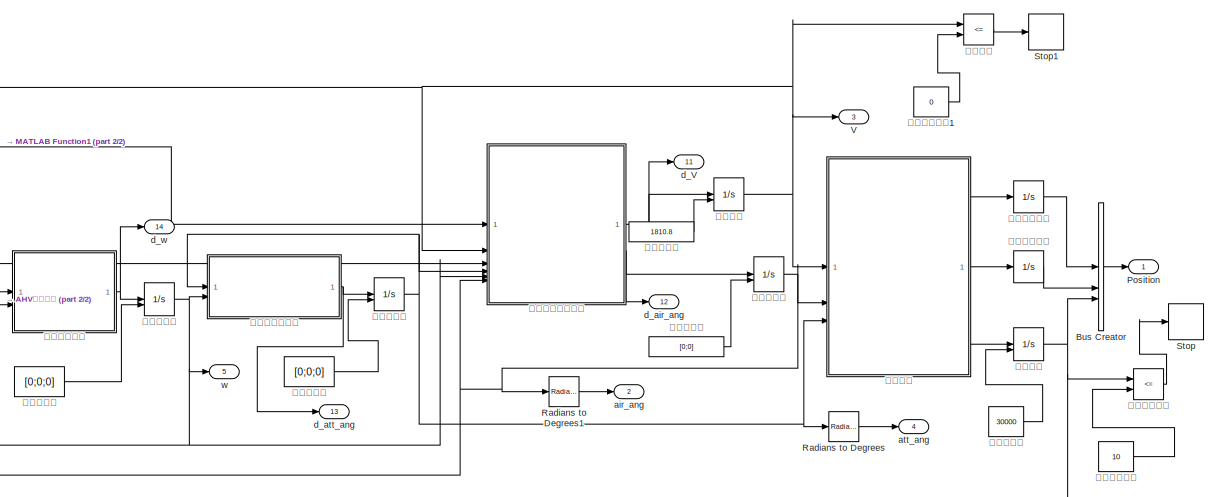
[diagram: root canvas - part 1/2, center side, full height]
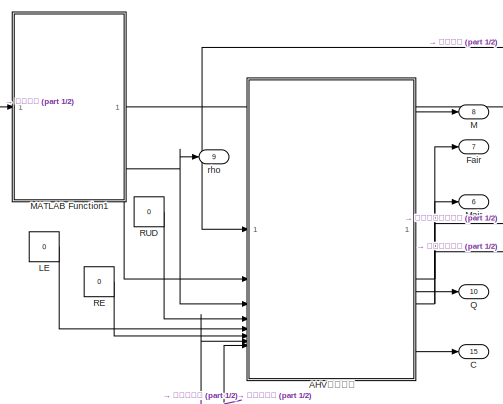
[diagram: root canvas - part 2/2, middle left region]
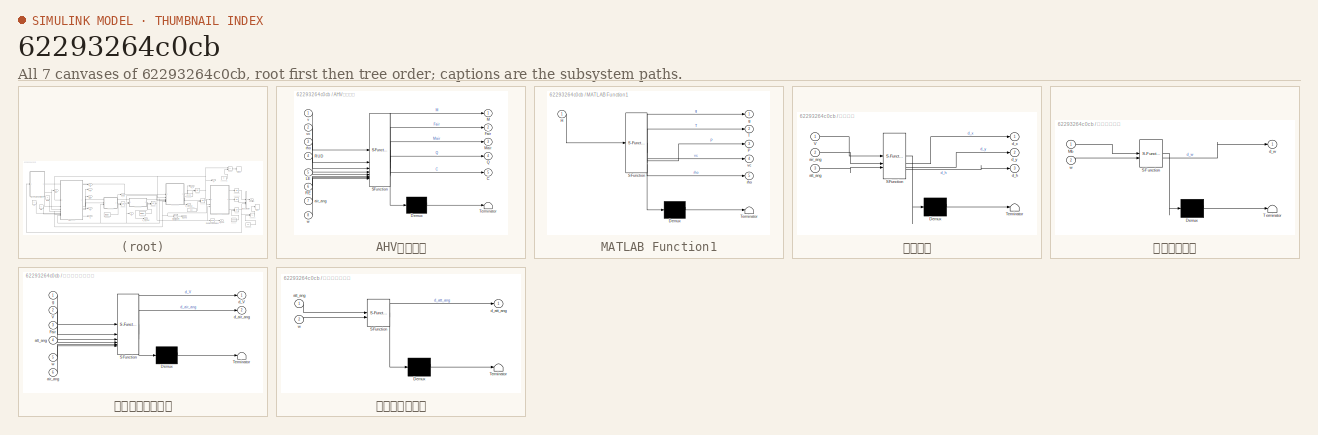
[diagram: thumbnail index - all 7 canvases of the model, root first then tree order]
MODEL slx_62293264c0cb
KIND model
CONFIG AbsTol = auto
CONFIG EnableMultiTasking = off
CONFIG FixedStep = 0.0000001
CONFIG MaxStep = 0.1
CONFIG MinStep = auto
CONFIG RelTol = 1e-3
CONFIG SampleTimeConstraint = Unconstrained
CONFIG SolverName = VariableStepAuto
CONFIG StartTime = 0.0
CONFIG StopTime = 10
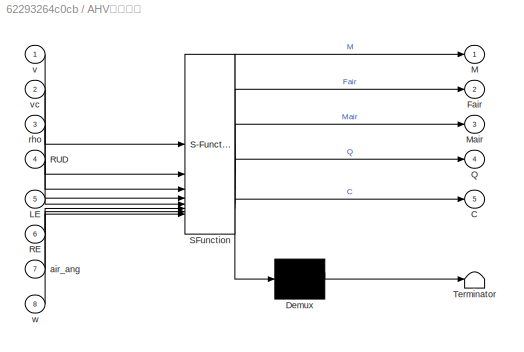
BLOCK [SubSystem] AHV气动参数
  ErrorFcn = Stateflow.Translate.translate
  PermitHierarchicalResolution = ExplicitOnly
  SFBlockType = MATLAB Function
  TreatAsAtomicUnit = on
BLOCK [Demux] AHV气动参数/ Demux 
  Outputs = 1
BLOCK [S-Function] AHV气动参数/ SFunction 
  EnableBusSupport = on
  FunctionName = sf_sfun
  PortCounts = [8 6]
  SFcnIsStateOwnerBlock = off
  SFunctionDeploymentMode = off
  Tag = Stateflow S-Function 4
BLOCK [Terminator] AHV气动参数/ Terminator 
BLOCK [Outport] AHV气动参数/C
  Port = 5
BLOCK [Outport] AHV气动参数/Fair
  Port = 2
BLOCK [Inport] AHV气动参数/LE
  Port = 5
BLOCK [Outport] AHV气动参数/M
BLOCK [Outport] AHV气动参数/Mair
  Port = 3
BLOCK [Outport] AHV气动参数/Q
  Port = 4
BLOCK [Inport] AHV气动参数/RE
  Port = 6
BLOCK [Inport] AHV气动参数/RUD
  Port = 4
BLOCK [Inport] AHV气动参数/air_ang
  Port = 7
BLOCK [Inport] AHV气动参数/rho
  Port = 3
BLOCK [Inport] AHV气动参数/v
BLOCK [Inport] AHV气动参数/vc
  Port = 2
BLOCK [Inport] AHV气动参数/w
  Port = 8
BLOCK [BusCreator] Bus Creator
  DisplayOption = bar
  InheritFromInputs = on
  Inputs = 3
BLOCK [Outport] C
  Port = 15
  SignalName = C
BLOCK [Outport] Fair
  Port = 7
  SignalName = Fair
BLOCK [Constant] LE
  Value = 0
BLOCK [Outport] M
  Port = 8
  SignalName = M
BLOCK [SubSystem] MATLAB Function1
  ErrorFcn = Stateflow.Translate.translate
  PermitHierarchicalResolution = ExplicitOnly
  SFBlockType = MATLAB Function
  TreatAsAtomicUnit = on
BLOCK [Demux] MATLAB Function1/ Demux 
  Outputs = 1
BLOCK [S-Function] MATLAB Function1/ SFunction 
  EnableBusSupport = on
  FunctionName = sf_sfun
  PortCounts = [1 6]
  SFcnIsStateOwnerBlock = off
  SFunctionDeploymentMode = off
  Tag = Stateflow S-Function 5
BLOCK [Terminator] MATLAB Function1/ Terminator 
BLOCK [Inport] MATLAB Function1/H
BLOCK [Outport] MATLAB Function1/P
  Port = 3
BLOCK [Outport] MATLAB Function1/T
  Port = 2
BLOCK [Outport] MATLAB Function1/g
BLOCK [Outport] MATLAB Function1/rho
  Port = 5
BLOCK [Outport] MATLAB Function1/vc
  Port = 4
BLOCK [Outport] Mair
  Port = 6
  SignalName = Mair
BLOCK [Outport] Position
  SignalName = Position
BLOCK [Outport] Q
  Port = 10
  SignalName = Q
BLOCK [Constant] RE
  Value = 0
BLOCK [Constant] RUD
  Value = 0
BLOCK [Reference] Radians to Degrees  REF=simulink_extras/Transformations/Radians
to Degrees
  SourceBlock = simulink_extras/Transformations/Radians\nto Degrees
  SourceType = RadiansToDegrees
BLOCK [Reference] Radians to Degrees1  REF=simulink_extras/Transformations/Radians
to Degrees
  SourceBlock = simulink_extras/Transformations/Radians\nto Degrees
  SourceType = RadiansToDegrees
BLOCK [Stop] Stop
BLOCK [Stop] Stop1
BLOCK [Outport] V
  Port = 3
  SignalName = V
BLOCK [Outport] air_ang
  Port = 2
  SignalName = air_ang
BLOCK [Outport] att_ang
  Port = 4
  SignalName = att_ang
BLOCK [Outport] d_V
  Port = 11
  SignalName = d_V
BLOCK [Outport] d_air_ang
  Port = 12
  SignalName = d_air_ang
BLOCK [Outport] d_att_ang
  Port = 13
  SignalName = d_att_ang
BLOCK [Outport] d_w
  Port = 14
  SignalName = d_w
BLOCK [Outport] rho
  Port = 9
  SignalName = rho
BLOCK [Outport] w
  Port = 5
  SignalName = w
BLOCK [RelationalOperator] 仿真停止条件
  InputSameDT = off
  Operator = <=
  OutDataTypeStr = boolean
  RndMeth = Simplest
BLOCK [Constant] 仿真停止高度
  Value = 10
BLOCK [Constant] 仿真停止高度1
  Value = 0
BLOCK [SubSystem] 位置输出
  ErrorFcn = Stateflow.Translate.translate
  PermitHierarchicalResolution = ExplicitOnly
  SFBlockType = MATLAB Function
  TreatAsAtomicUnit = on
BLOCK [Demux] 位置输出/ Demux 
  Outputs = 1
BLOCK [S-Function] 位置输出/ SFunction 
  EnableBusSupport = on
  FunctionName = sf_sfun
  PortCounts = [3 4]
  SFcnIsStateOwnerBlock = off
  SFunctionDeploymentMode = off
  Tag = Stateflow S-Function 6
BLOCK [Terminator] 位置输出/ Terminator 
BLOCK [Inport] 位置输出/V
BLOCK [Inport] 位置输出/air_ang
  Port = 2
BLOCK [Inport] 位置输出/att_ang
  Port = 3
BLOCK [Outport] 位置输出/d_h
  Port = 3
BLOCK [Outport] 位置输出/d_x
BLOCK [Outport] 位置输出/d_y
  Port = 2
BLOCK [Integrator] 侧向距离积分
BLOCK [Integrator] 前进距离积分
BLOCK [SubSystem] 力矩到角速度
  ErrorFcn = Stateflow.Translate.translate
  PermitHierarchicalResolution = ExplicitOnly
  SFBlockType = MATLAB Function
  TreatAsAtomicUnit = on
BLOCK [Demux] 力矩到角速度/ Demux 
  Outputs = 1
BLOCK [S-Function] 力矩到角速度/ SFunction 
  EnableBusSupport = on
  FunctionName = sf_sfun
  PortCounts = [2 2]
  SFcnIsStateOwnerBlock = off
  SFunctionDeploymentMode = off
  Tag = Stateflow S-Function 2
BLOCK [Terminator] 力矩到角速度/ Terminator 
BLOCK [Inport] 力矩到角速度/Mb
BLOCK [Outport] 力矩到角速度/d_w
BLOCK [Inport] 力矩到角速度/w
  Port = 2
BLOCK [Constant] 姿态角初值
  Value = [0;0;0]
BLOCK [Integrator] 姿态角积分
  InitialCondition = [0;0;0]
  InitialConditionSource = external
BLOCK [Constant] 气流角初值
  Value = [0;0]
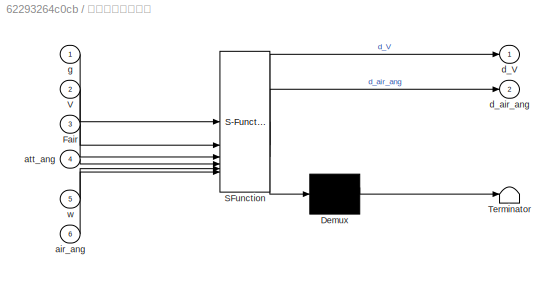
BLOCK [SubSystem] 气流角和速度输出
  ErrorFcn = Stateflow.Translate.translate
  PermitHierarchicalResolution = ExplicitOnly
  SFBlockType = MATLAB Function
  TreatAsAtomicUnit = on
BLOCK [Demux] 气流角和速度输出/ Demux 
  Outputs = 1
BLOCK [S-Function] 气流角和速度输出/ SFunction 
  EnableBusSupport = on
  FunctionName = sf_sfun
  PortCounts = [6 3]
  SFcnIsStateOwnerBlock = off
  SFunctionDeploymentMode = off
  Tag = Stateflow S-Function 3
BLOCK [Terminator] 气流角和速度输出/ Terminator 
BLOCK [Inport] 气流角和速度输出/Fair
  Port = 3
BLOCK [Inport] 气流角和速度输出/V
  Port = 2
BLOCK [Inport] 气流角和速度输出/air_ang
  Port = 6
BLOCK [Inport] 气流角和速度输出/att_ang
  Port = 4
BLOCK [Outport] 气流角和速度输出/d_V
BLOCK [Outport] 气流角和速度输出/d_air_ang
  Port = 2
BLOCK [Inport] 气流角和速度输出/g
BLOCK [Inport] 气流角和速度输出/w
  Port = 5
BLOCK [Integrator] 气流角积分
  InitialCondition = [0;0]
  InitialConditionSource = external
BLOCK [Constant] 角速度初值
  Value = [0;0;0]
BLOCK [SubSystem] 角速度到姿态角
  ErrorFcn = Stateflow.Translate.translate
  PermitHierarchicalResolution = ExplicitOnly
  SFBlockType = MATLAB Function
  TreatAsAtomicUnit = on
BLOCK [Demux] 角速度到姿态角/ Demux 
  Outputs = 1
BLOCK [S-Function] 角速度到姿态角/ SFunction 
  EnableBusSupport = on
  FunctionName = sf_sfun
  PortCounts = [2 2]
  SFcnIsStateOwnerBlock = off
  SFunctionDeploymentMode = off
  Tag = Stateflow S-Function 1
BLOCK [Terminator] 角速度到姿态角/ Terminator 
BLOCK [Inport] 角速度到姿态角/att_ang
BLOCK [Outport] 角速度到姿态角/d_att_ang
BLOCK [Inport] 角速度到姿态角/w
  Port = 2
BLOCK [Integrator] 角速度积分
  InitialCondition = [0;0;0]
  InitialConditionSource = external
BLOCK [RelationalOperator] 速度停止
  InputSameDT = off
  Operator = <=
  OutDataTypeStr = boolean
  RndMeth = Simplest
BLOCK [Constant] 速度初始值
  Value = 1810.8
BLOCK [Integrator] 速度积分
  InitialCondition = 2*340
  InitialConditionSource = external
BLOCK [Constant] 高度初始值
  Value = 30000
BLOCK [Integrator] 高度积分
  InitialCondition = 80000
  InitialConditionSource = external
LINE AHV气动参数:1 -> M:1
NET AHV气动参数:2 -> Fair:1, 气流角和速度输出:3
NET AHV气动参数:3 -> Mair:1, 力矩到角速度:1
LINE AHV气动参数:4 -> Q:1
LINE AHV气动参数:5 -> C:1
LINE Bus Creator:1 -> Position:1
LINE LE:1 -> AHV气动参数:5
LINE MATLAB Function1:1 -> 气流角和速度输出:1
LINE MATLAB Function1:4 -> AHV气动参数:2
NET MATLAB Function1:5 -> AHV气动参数:3, rho:1
LINE RE:1 -> AHV气动参数:6
LINE RUD:1 -> AHV气动参数:4
LINE Radians to Degrees1:1 -> air_ang:1
LINE Radians to Degrees:1 -> att_ang:1
LINE 仿真停止条件:1 -> Stop:1
LINE 仿真停止高度1:1 -> 速度停止:2
LINE 仿真停止高度:1 -> 仿真停止条件:2
LINE 位置输出:1 -> 前进距离积分:1
LINE 位置输出:2 -> 侧向距离积分:1
LINE 位置输出:3 -> 高度积分:1
LINE 侧向距离积分:1 -> Bus Creator:2
LINE 前进距离积分:1 -> Bus Creator:1
NET 力矩到角速度:1 -> d_w:1, 角速度积分:1
LINE 姿态角初值:1 -> 姿态角积分:2
NET 姿态角积分:1 -> Radians to Degrees:1, 位置输出:3, 气流角和速度输出:4, 角速度到姿态角:1
LINE 气流角初值:1 -> 气流角积分:2
NET 气流角和速度输出:1 -> d_V:1, 速度积分:1
NET 气流角和速度输出:2 -> d_air_ang:1, 气流角积分:1
NET 气流角积分:1 -> AHV气动参数:7, Radians to Degrees1:1, 位置输出:2, 气流角和速度输出:6
LINE 角速度初值:1 -> 角速度积分:2
NET 角速度到姿态角:1 -> d_att_ang:1, 姿态角积分:1
NET 角速度积分:1 -> AHV气动参数:8, w:1, 力矩到角速度:2, 气流角和速度输出:5, 角速度到姿态角:2
LINE 速度停止:1 -> Stop1:1
LINE 速度初始值:1 -> 速度积分:2
NET 速度积分:1 -> AHV气动参数:1, V:1, 位置输出:1, 气流角和速度输出:2, 速度停止:1
LINE 高度初始值:1 -> 高度积分:2
NET 高度积分:1 -> Bus Creator:3, MATLAB Function1:1, 仿真停止条件:1
note: NET lines group one-source signal fan-out (src -> all destinations, sorted); 1:1 wires keep LINE
CHART 角速度到姿态角 states=1 transitions=1
  STATE_LABEL 'eML_blk_kernel()'
  STATE_LABEL 'SCRIPT:\nfunction d_att_ang = S_rot_kin(att_ang, w)\n\n    d_att_ang = rot_kin(att_ang, w);\n\nend\n'
CHART 力矩到角速度 states=1 transitions=1
  STATE_LABEL 'eML_blk_kernel()'
  STATE_LABEL 'SCRIPT:\nfunction d_w  = S_rot_dyn (Mb, w)\n\n    d_w = zeros(3, 1); %#ok<*PREALL>\n    [d_w] = rot_dyn(Mb, w);\n\n\nend\n'
CHART 气流角和速度输出 states=1 transitions=1
  STATE_LABEL 'eML_blk_kernel()'
  STATE_LABEL 'SCRIPT:\nfunction [d_V, d_air_ang] = S_tra_dyn(g, V, Fair, att_ang, w, air_ang)\n\n     d_V = zeros(1, 1);\n     d_air_ang = zeros(2, 1);\n    [d_V, d_air_ang] = tra_dyn(Fair, g, V, air_ang, att_ang, w);\n\n\n\nend\n'
CHART AHV气动参数 states=1 transitions=1
  STATE_LABEL 'eML_blk_kernel()'
  STATE_LABEL 'SCRIPT:\nfunction [M, Fair, Mair, Q, C] = S_Get_Aerodynamic(v, vc, rho, RUD, LE, RE, air_ang, w)\n\n  \n[M, Fair, Mair, Q, C] = Get_Aerodynamic(LE, RE, RUD, air_ang, v, w, vc, rho);\n   \nend\n'
CHART MATLAB Function1 states=1 transitions=1
  STATE_LABEL 'eML_blk_kernel()'
  STATE_LABEL 'SCRIPT:\nfunction [g, T, P, vc, rho] = S_EarthEnvironment(H)\n\n[T, vc, P, rho, g] = EarthEnvironment(H);\n\nend'
CHART 位置输出 states=1 transitions=1
  STATE_LABEL 'eML_blk_kernel()'
  STATE_LABEL 'SCRIPT:\nfunction [d_x, d_y, d_h] = S_tra_kin(V, air_ang, att_ang)\n\n   [d_x, d_y, d_h] = tra_kin(V, air_ang, att_ang);\n\nend'
CHART  states=0 transitions=0
CHART  states=0 transitions=0
CHART  states=0 transitions=0
CHART  states=0 transitions=0
CHART  states=0 transitions=0
CHART  states=0 transitions=0
